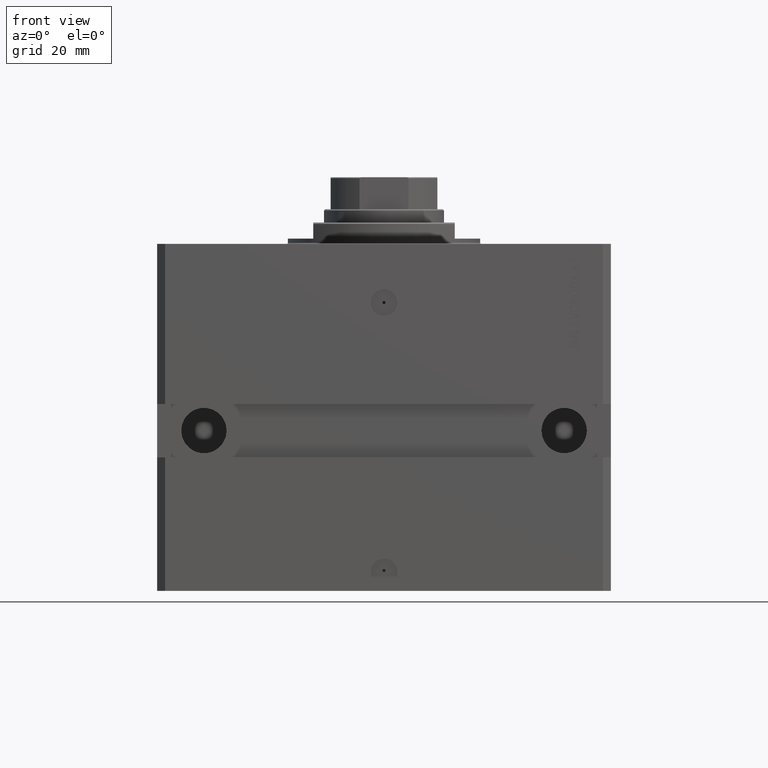
[diagram: clean part render]
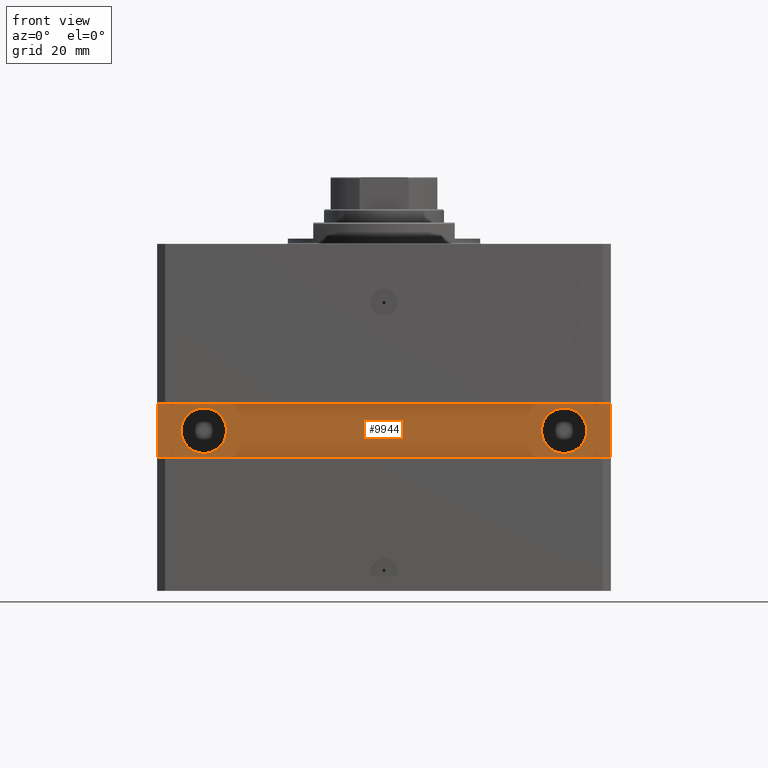
[diagram: same view with one face highlighted and labeled with its STEP entity id]
A machine part, front view. The second image highlights one B-rep face of the part: STEP entity #9944.
In plain terms, the highlighted planar face has unit normal (0, -1, 0).
Its self-contained STEP definition (entity closure, byte-faithful):
#375 = DIRECTION ( 'NONE',  ( -1.000000000000000000, -1.632680918566406300E-16, -2.449021377849609204E-16 ) ) ;
#873 = ORIENTED_EDGE ( 'NONE', *, *, #15885, .T. ) ;
#1154 = CARTESIAN_POINT ( 'NONE',  ( 67.50000000000002842, -64.99999999999998579, -70.00000000000000000 ) ) ;
#1455 = FACE_BOUND ( 'NONE', #42784, .T. ) ;
#1816 = VERTEX_POINT ( 'NONE', #6292 ) ;
#4166 = VERTEX_POINT ( 'NONE', #45957 ) ;
#4639 = VECTOR ( 'NONE', #46575, 1000.000000000000000 ) ;
#6292 = CARTESIAN_POINT ( 'NONE',  ( 85.00000000000001421, -64.99999999999998579, -80.00000000000001421 ) ) ;
#6430 = DIRECTION ( 'NONE',  ( 1.101411730780568590E-16, -1.000000000000000000, 0.000000000000000000 ) ) ;
#7705 = CIRCLE ( 'NONE', #13959, 8.499999999999992895 ) ;
#8275 = VECTOR ( 'NONE', #13048, 1000.000000000000000 ) ;
#8660 = VERTEX_POINT ( 'NONE', #27128 ) ;
#8735 = DIRECTION ( 'NONE',  ( 0.000000000000000000, 0.000000000000000000, 1.000000000000000000 ) ) ;
#8736 = DIRECTION ( 'NONE',  ( 1.000000000000000000, 0.000000000000000000, 0.000000000000000000 ) ) ;
#9228 = EDGE_LOOP ( 'NONE', ( #873, #18960, #33888, #17480 ) ) ;
#9409 = VERTEX_POINT ( 'NONE', #45995 ) ;
#9514 = FACE_BOUND ( 'NONE', #21888, .T. ) ;
#9944 = ADVANCED_FACE ( 'NONE', ( #9514, #1455, #46037 ), #12713, .T. ) ;
#11051 = VECTOR ( 'NONE', #375, 1000.000000000000000 ) ;
#11163 = EDGE_CURVE ( 'NONE', #37996, #9409, #7705, .T. ) ;
#11477 = DIRECTION ( 'NONE',  ( 1.000000000000000000, 0.000000000000000000, 0.000000000000000000 ) ) ;
#12713 = PLANE ( 'NONE',  #18592 ) ;
#12955 = CIRCLE ( 'NONE', #29377, 8.499999999999992895 ) ;
#13048 = DIRECTION ( 'NONE',  ( 0.000000000000000000, 0.000000000000000000, -1.000000000000000000 ) ) ;
#13256 = LINE ( 'NONE', #24997, #4639 ) ;
#13591 = EDGE_CURVE ( 'NONE', #40022, #8660, #24901, .T. ) ;
#13959 = AXIS2_PLACEMENT_3D ( 'NONE', #34166, #14574, #30501 ) ;
#14574 = DIRECTION ( 'NONE',  ( 1.041232428609250764E-16, -1.000000000000000000, -6.162975822039154730E-33 ) ) ;
#14825 = CARTESIAN_POINT ( 'NONE',  ( 85.00000000000001421, -64.99999999999998579, -59.99999999999998579 ) ) ;
#15885 = EDGE_CURVE ( 'NONE', #4166, #1816, #13256, .T. ) ;
#16070 = LINE ( 'NONE', #45972, #47892 ) ;
#16847 = DIRECTION ( 'NONE',  ( 1.000000000000000000, 1.632680918566406300E-16, 0.000000000000000000 ) ) ;
#17433 = CARTESIAN_POINT ( 'NONE',  ( -67.49999999999997158, -65.00000000000001421, -70.00000000000001421 ) ) ;
#17480 = ORIENTED_EDGE ( 'NONE', *, *, #34587, .T. ) ;
#17671 = ORIENTED_EDGE ( 'NONE', *, *, #40451, .F. ) ;
#18236 = LINE ( 'NONE', #14825, #11051 ) ;
#18592 = AXIS2_PLACEMENT_3D ( 'NONE', #34526, #38188, #16847 ) ;
#18960 = ORIENTED_EDGE ( 'NONE', *, *, #27214, .T. ) ;
#20931 = ORIENTED_EDGE ( 'NONE', *, *, #39072, .F. ) ;
#21563 = EDGE_CURVE ( 'NONE', #42741, #38582, #18236, .T. ) ;
#21888 = EDGE_LOOP ( 'NONE', ( #31948, #20931 ) ) ;
#24901 = CIRCLE ( 'NONE', #28018, 8.500000000000000000 ) ;
#24997 = CARTESIAN_POINT ( 'NONE',  ( -85.00000000000001421, -65.00000000000001421, -80.00000000000001421 ) ) ;
#25521 = AXIS2_PLACEMENT_3D ( 'NONE', #17433, #6430, #40201 ) ;
#25718 = CARTESIAN_POINT ( 'NONE',  ( -58.99999999999997868, -65.00000000000001421, -70.00000000000001421 ) ) ;
#27128 = CARTESIAN_POINT ( 'NONE',  ( -75.99999999999997158, -65.00000000000001421, -70.00000000000001421 ) ) ;
#27214 = EDGE_CURVE ( 'NONE', #1816, #42741, #16070, .T. ) ;
#27359 = DIRECTION ( 'NONE',  ( 1.041232428609250764E-16, -1.000000000000000000, -6.162975822039154730E-33 ) ) ;
#28018 = AXIS2_PLACEMENT_3D ( 'NONE', #37922, #45531, #11477 ) ;
#28621 = CARTESIAN_POINT ( 'NONE',  ( 85.00000000000001421, -64.99999999999998579, -59.99999999999998579 ) ) ;
#29377 = AXIS2_PLACEMENT_3D ( 'NONE', #1154, #27359, #8736 ) ;
#30501 = DIRECTION ( 'NONE',  ( 1.000000000000000000, 0.000000000000000000, 0.000000000000000000 ) ) ;
#31037 = CIRCLE ( 'NONE', #25521, 8.500000000000000000 ) ;
#31948 = ORIENTED_EDGE ( 'NONE', *, *, #11163, .F. ) ;
#33888 = ORIENTED_EDGE ( 'NONE', *, *, #21563, .T. ) ;
#34166 = CARTESIAN_POINT ( 'NONE',  ( 67.50000000000002842, -64.99999999999998579, -70.00000000000000000 ) ) ;
#34526 = CARTESIAN_POINT ( 'NONE',  ( 1.084072457370145048E-14, -65.00000000000000000, 0.000000000000000000 ) ) ;
#34587 = EDGE_CURVE ( 'NONE', #38582, #4166, #39952, .T. ) ;
#36899 = CARTESIAN_POINT ( 'NONE',  ( 76.00000000000002842, -64.99999999999998579, -70.00000000000000000 ) ) ;
#37922 = CARTESIAN_POINT ( 'NONE',  ( -67.49999999999997158, -65.00000000000001421, -70.00000000000001421 ) ) ;
#37996 = VERTEX_POINT ( 'NONE', #36899 ) ;
#38188 = DIRECTION ( 'NONE',  ( 1.632680918566406300E-16, -1.000000000000000000, 0.000000000000000000 ) ) ;
#38582 = VERTEX_POINT ( 'NONE', #46872 ) ;
#39072 = EDGE_CURVE ( 'NONE', #9409, #37996, #12955, .T. ) ;
#39952 = LINE ( 'NONE', #46607, #8275 ) ;
#40022 = VERTEX_POINT ( 'NONE', #25718 ) ;
#40124 = ORIENTED_EDGE ( 'NONE', *, *, #13591, .F. ) ;
#40201 = DIRECTION ( 'NONE',  ( 1.000000000000000000, 0.000000000000000000, 0.000000000000000000 ) ) ;
#40451 = EDGE_CURVE ( 'NONE', #8660, #40022, #31037, .T. ) ;
#42741 = VERTEX_POINT ( 'NONE', #28621 ) ;
#42784 = EDGE_LOOP ( 'NONE', ( #40124, #17671 ) ) ;
#45531 = DIRECTION ( 'NONE',  ( 1.101411730780568590E-16, -1.000000000000000000, 0.000000000000000000 ) ) ;
#45957 = CARTESIAN_POINT ( 'NONE',  ( -85.00000000000001421, -65.00000000000001421, -80.00000000000001421 ) ) ;
#45972 = CARTESIAN_POINT ( 'NONE',  ( 85.00000000000001421, -64.99999999999998579, -80.00000000000001421 ) ) ;
#45995 = CARTESIAN_POINT ( 'NONE',  ( 59.00000000000003553, -64.99999999999998579, -70.00000000000000000 ) ) ;
#46037 = FACE_OUTER_BOUND ( 'NONE', #9228, .T. ) ;
#46575 = DIRECTION ( 'NONE',  ( 1.000000000000000000, 1.632680918566406300E-16, 0.000000000000000000 ) ) ;
#46607 = CARTESIAN_POINT ( 'NONE',  ( -85.00000000000001421, -65.00000000000001421, -60.00000000000002842 ) ) ;
#46872 = CARTESIAN_POINT ( 'NONE',  ( -85.00000000000001421, -65.00000000000001421, -60.00000000000002842 ) ) ;
#47892 = VECTOR ( 'NONE', #8735, 1000.000000000000000 ) ;